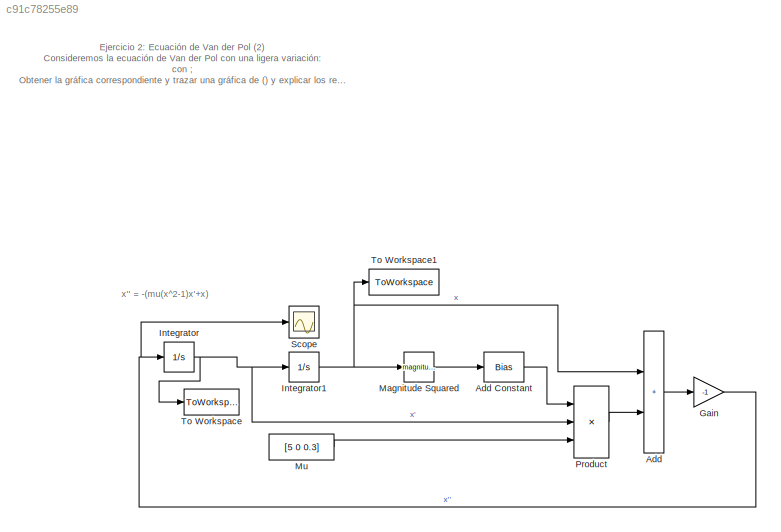
MODEL slx_c91c78255e89
KIND model
CONFIG AbsTol = auto
CONFIG EnableMultiTasking = off
CONFIG FixedStep = auto
CONFIG MaxStep = auto
CONFIG MinStep = auto
CONFIG RelTol = 1e-3
CONFIG SampleTimeConstraint = Unconstrained
CONFIG SolverName = VariableStepAuto
CONFIG StartTime = 0.0
CONFIG StopTime = 20
BLOCK [Sum] Add
  IconShape = rectangular
BLOCK [Bias] Add Constant
  Bias = -1
  SaturateOnIntegerOverflow = off
BLOCK [Gain] Gain
  Gain = -1
BLOCK [Integrator] Integrator
BLOCK [Integrator] Integrator1
  InitialCondition = 2
BLOCK [Math] Magnitude Squared
  Operator = magnitude^2
BLOCK [Constant] Mu
  Value = [5 0 0.3]
BLOCK [Product] Product
  Inputs = 3
BLOCK [Scope] Scope
  Floating = off
  NumInputPorts = 1
  ScopeSpecificationString = Simulink.scopes.TimeScopeBlockCfg('CurrentConfiguration', extmgr.ConfigurationSet(extmgr.Configuration('Core','General UI',true),extmgr.Configuration('Core','Source UI',true),extmgr.Configuration('Sources','WiredSimulink',true),extmgr.Configuration('Visuals','Time Domain',true,'SerializedDisplays',{struct('MinYLimReal','-48.59332','MaxYLimReal','54.50794','YLabelReal','','MinYLimMag','0.00000','Ma...<+1353ch>
BLOCK [ToWorkspace] To Workspace
  FixptAsFi = on
  MaxDataPoints = inf
  SampleTime = -1
  VariableName = dx
BLOCK [ToWorkspace] To Workspace1
  FixptAsFi = on
  MaxDataPoints = inf
  SampleTime = -1
  VariableName = x
ANNOTATION (root): E jercicio 2: Ecuación de Van der Pol (2) Consideremos la ecuación de Van der Pol con una ligera variación: con ; Obtener la gráfica correspondiente y trazar una gráfica de ( ) y explicar los resultados.
ANNOTATION (root): x'' = -(mu(x^2-1)x'+x)
LINE Add Constant:1 -> Product:1
LINE Add:1 -> Gain:1
NET Gain:1 -> Integrator:1, Scope:1
NET Integrator1:1 -> Add:1, Magnitude Squared:1, To Workspace1:1
NET Integrator:1 -> Integrator1:1, Product:2, To Workspace:1
LINE Magnitude Squared:1 -> Add Constant:1
LINE Mu:1 -> Product:3
LINE Product:1 -> Add:2
note: NET lines group one-source signal fan-out (src -> all destinations, sorted); 1:1 wires keep LINE
